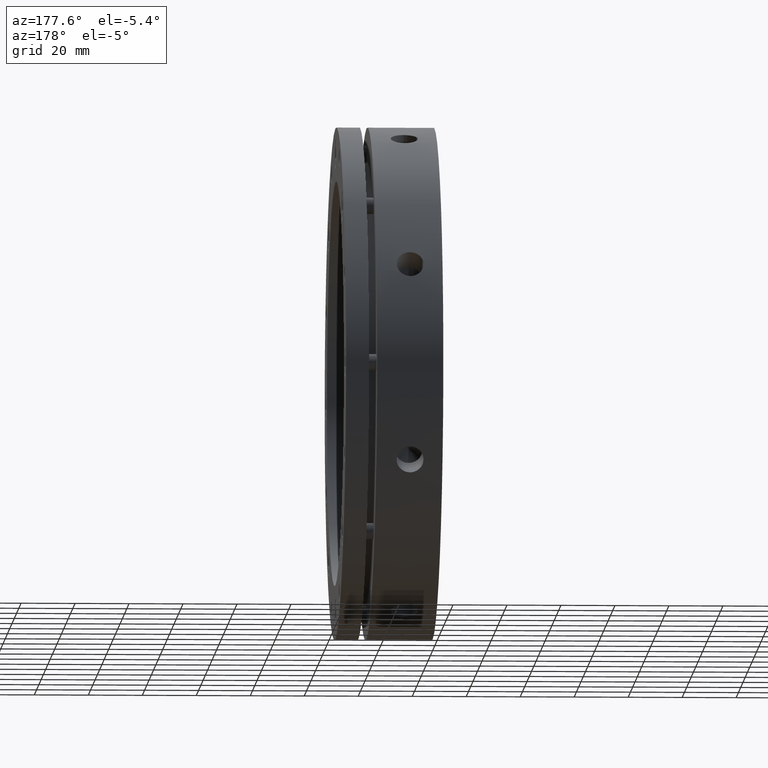
[diagram: clean part render]
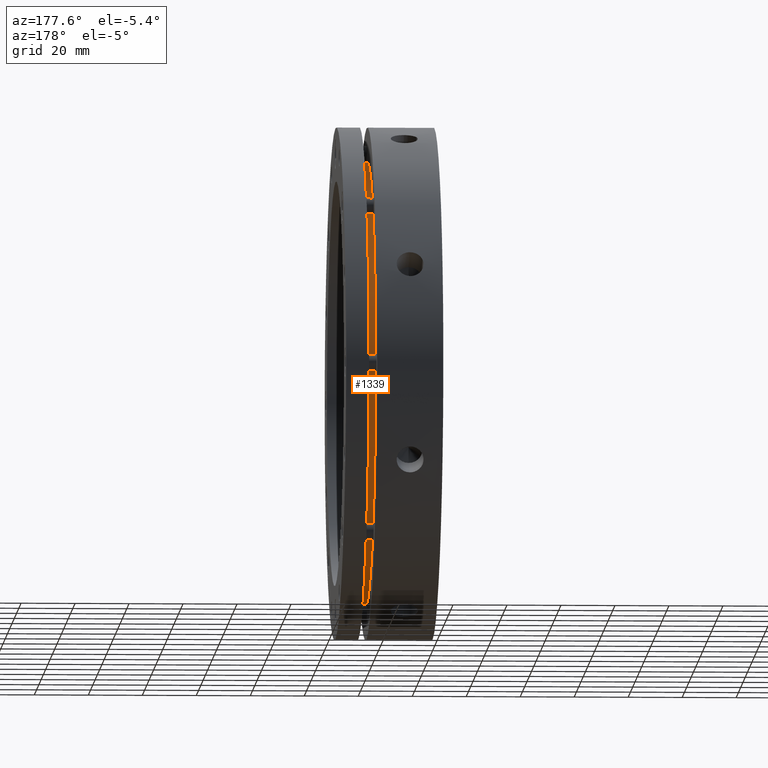
[diagram: same view with one face highlighted and labeled with its STEP entity id]
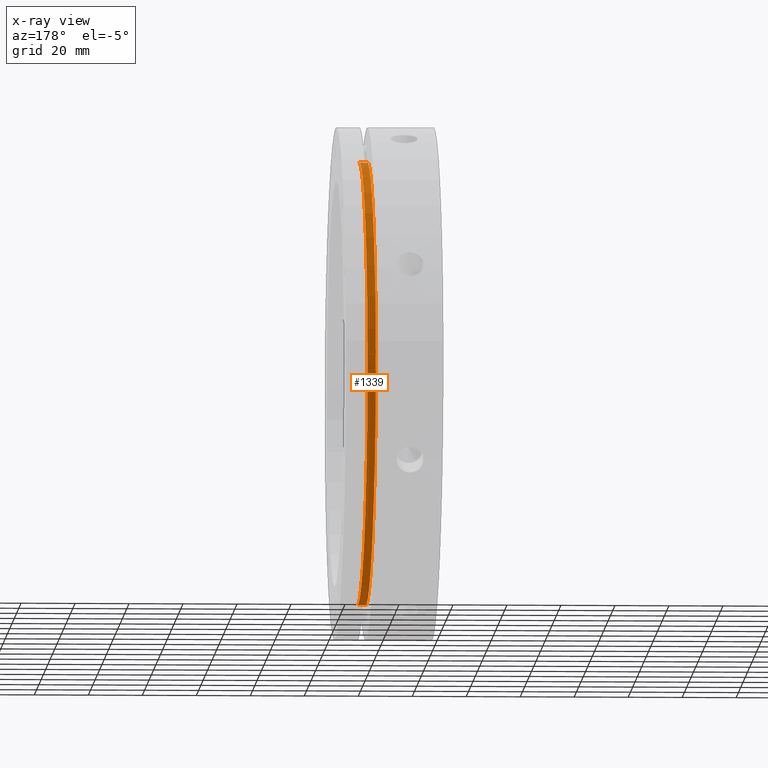
[diagram: x-ray of the same camera — body ghosted, the highlighted face saturated]
A machine part, auxiliary view. The second image highlights one B-rep face of the part: STEP entity #1339.
The next image is the same camera in x-ray: the body ghosted, the highlighted face saturated — about 2% of this face is hidden behind the body in this view.
In plain terms, the highlighted cylindrical surface (partial cylindrical patch) has radius 82 mm, axis along (-1, 0, 0).
Its self-contained STEP definition (entity closure, byte-faithful):
#3 = VECTOR ( 'NONE', #1111, 1000.000000000000000 ) ;
#5 = LINE ( 'NONE', #1113, #3 ) ;
#6 = VECTOR ( 'NONE', #1112, 1000.000000000000000 ) ;
#9 = CIRCLE ( 'NONE', #5679, 82.00000000000001400 ) ;
#11 = LINE ( 'NONE', #1105, #6 ) ;
#313 = DIRECTION ( 'NONE',  ( 0.0000000000000000000, 0.0000000000000000000, 1.000000000000000000 ) ) ;
#315 = DIRECTION ( 'NONE',  ( -1.000000000000000000, 0.0000000000000000000, 0.0000000000000000000 ) ) ;
#317 = CARTESIAN_POINT ( 'NONE',  ( 25.99999999999997900, 0.0000000000000000000, 0.0000000000000000000 ) ) ;
#487 = CARTESIAN_POINT ( 'NONE',  ( 24.49999999999997500, 0.0000000000000000000, 82.00000000000001400 ) ) ;
#497 = CARTESIAN_POINT ( 'NONE',  ( 27.49999999999997900, 0.0000000000000000000, 82.00000000000001400 ) ) ;
#514 = CARTESIAN_POINT ( 'NONE',  ( 24.49999999999997500, 1.004210375300829800E-014, -82.00000000000001400 ) ) ;
#519 = CARTESIAN_POINT ( 'NONE',  ( 27.49999999999997900, 1.004210375300829800E-014, -82.00000000000001400 ) ) ;
#851 = CARTESIAN_POINT ( 'NONE',  ( 27.49999999999997900, 0.0000000000000000000, 0.0000000000000000000 ) ) ;
#852 = DIRECTION ( 'NONE',  ( -1.000000000000000000, 0.0000000000000000000, 0.0000000000000000000 ) ) ;
#853 = DIRECTION ( 'NONE',  ( 0.0000000000000000000, 0.0000000000000000000, 1.000000000000000000 ) ) ;
#1105 = CARTESIAN_POINT ( 'NONE',  ( 25.99999999999997900, 0.0000000000000000000, 82.00000000000001400 ) ) ;
#1111 = DIRECTION ( 'NONE',  ( -1.000000000000000000, 0.0000000000000000000, 0.0000000000000000000 ) ) ;
#1112 = DIRECTION ( 'NONE',  ( -1.000000000000000000, 0.0000000000000000000, 0.0000000000000000000 ) ) ;
#1113 = CARTESIAN_POINT ( 'NONE',  ( 25.99999999999997900, 1.004210375300829800E-014, -82.00000000000001400 ) ) ;
#1114 = CARTESIAN_POINT ( 'NONE',  ( 24.49999999999997500, 0.0000000000000000000, 0.0000000000000000000 ) ) ;
#1115 = DIRECTION ( 'NONE',  ( 1.000000000000000000, -0.0000000000000000000, -0.0000000000000000000 ) ) ;
#1116 = DIRECTION ( 'NONE',  ( 0.0000000000000000000, 0.0000000000000000000, 1.000000000000000000 ) ) ;
#1339 = ADVANCED_FACE ( 'NONE', ( #4995 ), #4980, .T. ) ;
#1437 = VERTEX_POINT ( 'NONE', #487 ) ;
#1451 = VERTEX_POINT ( 'NONE', #497 ) ;
#1481 = VERTEX_POINT ( 'NONE', #514 ) ;
#1499 = VERTEX_POINT ( 'NONE', #519 ) ;
#1729 = AXIS2_PLACEMENT_3D ( 'NONE', #851, #852, #853 ) ;
#2147 = ORIENTED_EDGE ( 'NONE', *, *, #3869, .F. ) ;
#2149 = ORIENTED_EDGE ( 'NONE', *, *, #3870, .T. ) ;
#2150 = ORIENTED_EDGE ( 'NONE', *, *, #3871, .T. ) ;
#2151 = ORIENTED_EDGE ( 'NONE', *, *, #3493, .T. ) ;
#3493 = EDGE_CURVE ( 'NONE', #1451, #1499, #4138, .T. ) ;
#3718 = EDGE_LOOP ( 'NONE', ( #2151, #2150, #2149, #2147 ) ) ;
#3869 = EDGE_CURVE ( 'NONE', #1451, #1437, #11, .T. ) ;
#3870 = EDGE_CURVE ( 'NONE', #1481, #1437, #9, .T. ) ;
#3871 = EDGE_CURVE ( 'NONE', #1499, #1481, #5, .T. ) ;
#4138 = CIRCLE ( 'NONE', #1729, 82.00000000000001400 ) ;
#4980 = CYLINDRICAL_SURFACE ( 'NONE', #5559, 82.00000000000001400 ) ;
#4995 = FACE_OUTER_BOUND ( 'NONE', #3718, .T. ) ;
#5559 = AXIS2_PLACEMENT_3D ( 'NONE', #317, #315, #313 ) ;
#5679 = AXIS2_PLACEMENT_3D ( 'NONE', #1114, #1115, #1116 ) ;